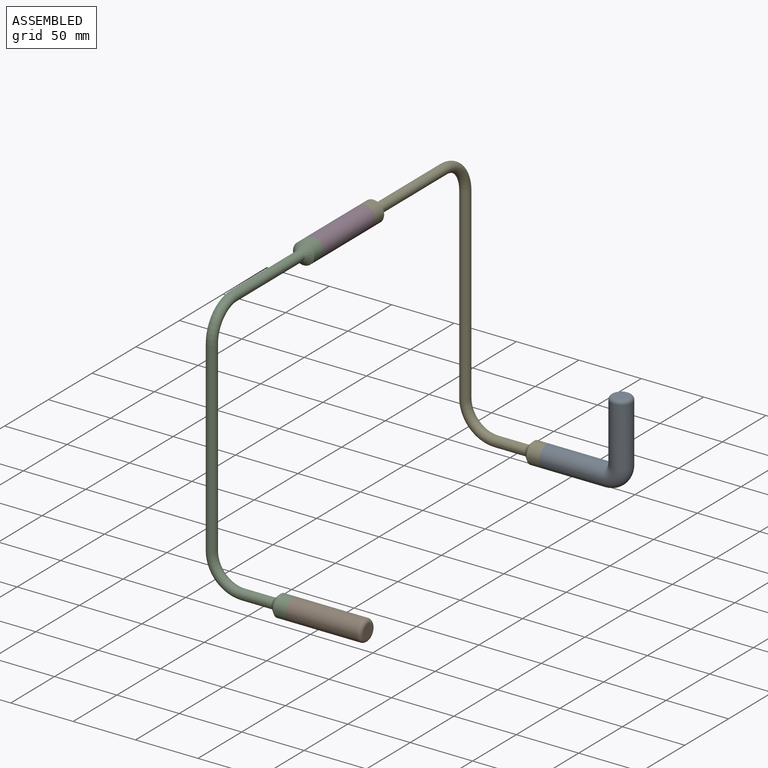
[diagram: assembled view]
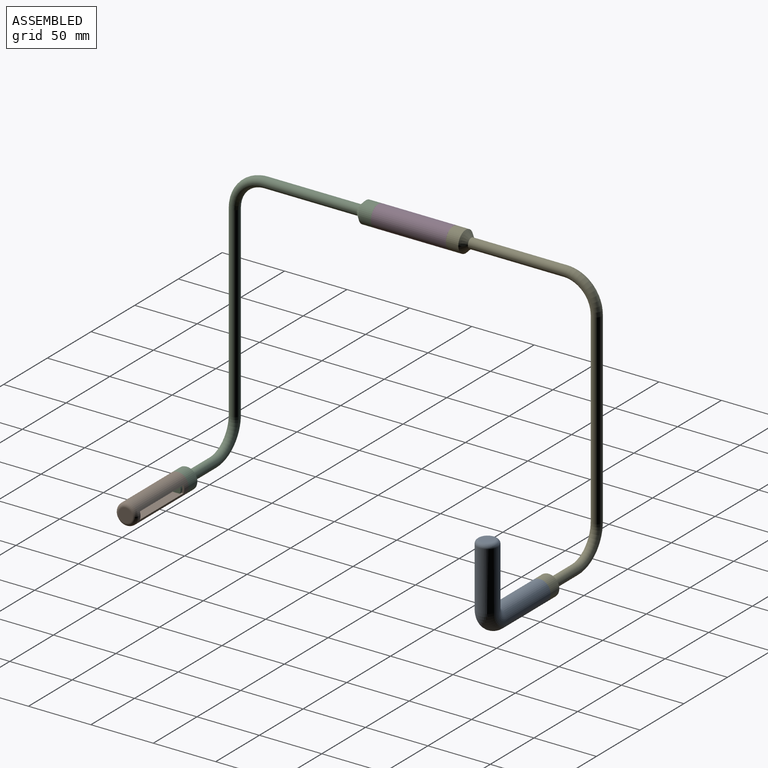
[diagram: assembled view, second angle]
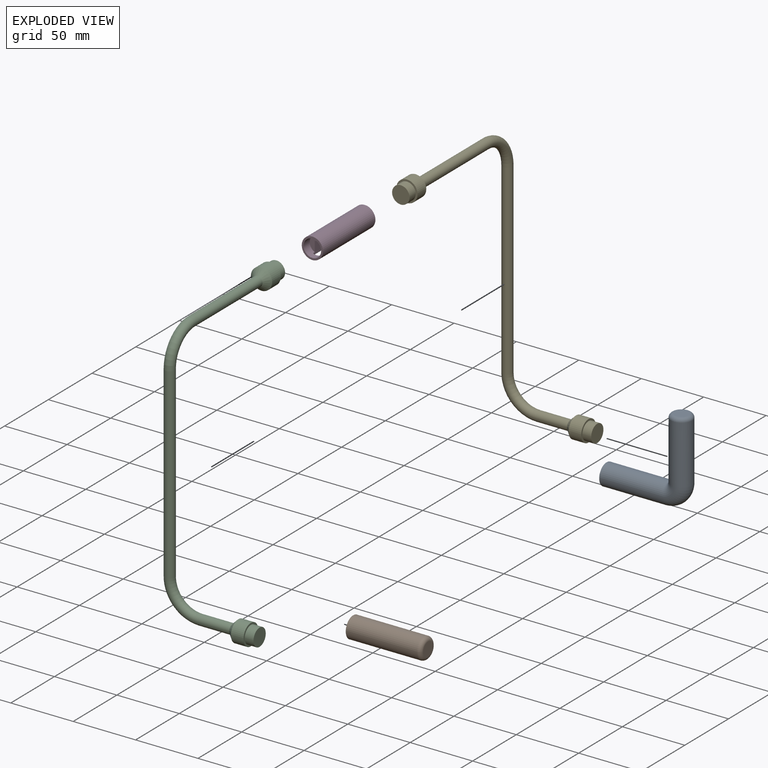
[diagram: exploded view]
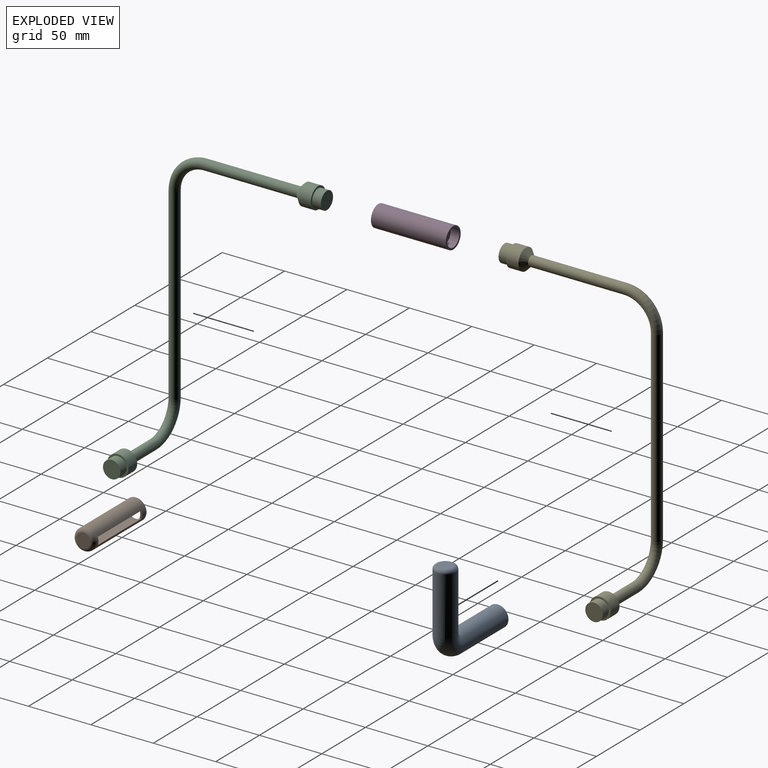
[diagram: exploded view, second angle]
ASSEMBLY  parts=5 mates=3
PART A: 8 faces, bbox 18.4x70x70 mm
  f0: plane 17x17mm, normal (0,1,0), area 73mm2, adj f2,f5
  f1: plane 11x11mm, normal (0,0,1), area 95mm2, adj f7
  f2: cylinder r=8.5mm len=50mm, axis (0,-1,0), area 2670.4mm2, adj f0,f3
  f3: torus R=10mm, axis (-1,0,0), area 838.9mm2, adj f2,f4
  f4: cylinder r=8.5mm len=47mm, axis (0,0,1), area 2510.1mm2, adj f3,f7
  f5: cylinder r=7mm len=14mm, axis (0,1,0), area 307.9mm2, adj f0,f6
  f6: plane 14x14mm, normal (0,1,0), area 153.9mm2, adj f5
  f7: torus R=5.5mm, axis (0,0,1), area 219.4mm2, adj f1,f4
PART B: 11 faces, bbox 60x18.4x18.4 mm
  f0: plane 48x6mm, normal (0,-1,0), area 288mm2, adj f5,f6,f7,f9
  f1: plane 17x17mm, normal (1,0,0), area 73mm2, adj f3,f8
  f2: plane 6x2.18mm, normal (-1,0,0), area 9.2mm2, adj f3,f6,f7,f8
  f3: cylinder r=8.5mm len=57mm, axis (-1,0,0), area 2737.6mm2, adj f1,f2,f5,f6,f7,f10
  f4: plane 11x11mm, normal (-1,0,0), area 95mm2, adj f10
  f5: plane 10.5x6mm, normal (1,0,0), area 61.9mm2, adj f0,f3,f6,f7
  f6: plane 50x9.95mm, normal (0,0,-1), area 481mm2, adj f0,f2,f3,f5,f8,f9
  f7: plane 50x9.95mm, normal (0,0,1), area 481mm2, adj f0,f2,f3,f5,f8,f9
  f8: cylinder r=7mm len=14mm, axis (1,0,0), area 295.5mm2, adj f1,f2,f6,f7,f9
  f9: plane 14x13.32mm, normal (1,0,0), area 101.3mm2, adj f0,f6,f7,f8
  f10: torus R=5.5mm, axis (1,0,0), area 219.4mm2, adj f3,f4
PART C: 15 faces, bbox 130.5x80.5x217 mm
  f0: cylinder r=4mm len=25.5mm, axis (0,1,0), area 640.9mm2, adj f1,f12
  f1: torus R=25mm, axis (1,0,0), area 987mm2, adj f0,f2
  f2: cylinder r=4mm len=150mm, axis (0,0,1), area 3769.9mm2, adj f1,f3
  f3: torus R=25mm, axis (0,1,0), area 987mm2, adj f2,f4
  f4: cylinder r=4mm len=75.5mm, axis (1,0,0), area 1897.5mm2, adj f3,f7
  f5: cylinder r=8.5mm len=17mm, axis (-1,0,0), area 534.1mm2, adj f6,f7
  f6: plane 17x17mm, normal (1,0,0), area 73mm2, adj f5,f8
  f7: cone r=8.5mm half-angle=45deg, axis (1,0,0), area 249.9mm2, adj f4,f5
  f8: cylinder r=7mm len=14mm, axis (-1,0,0), area 307.9mm2, adj f6,f9
  f9: plane 14x14mm, normal (1,0,0), area 153.9mm2, adj f8
  f10: cylinder r=8.5mm len=17mm, axis (0,1,0), area 534.1mm2, adj f11,f12
  f11: plane 17x17mm, normal (0,-1,0), area 73mm2, adj f10,f13
  f12: cone r=8.5mm half-angle=45deg, axis (0,-1,0), area 249.9mm2, adj f0,f10
  f13: cylinder r=7mm len=14mm, axis (0,1,0), area 307.9mm2, adj f11,f14
  f14: plane 14x14mm, normal (0,-1,0), area 153.9mm2, adj f13
PART D: 12 faces, bbox 60x17x17 mm
  f0: plane 46x6mm, normal (0,-1,0), area 276mm2, adj f6,f7,f9,f11
  f1: plane 17x17mm, normal (1,0,0), area 73mm2, adj f5,f8
  f2: plane 17x17mm, normal (-1,0,0), area 73mm2, adj f5,f10
  f3: plane 6x2.18mm, normal (1,0,0), area 9.2mm2, adj f5,f6,f7,f10
  f4: plane 6x2.18mm, normal (-1,0,0), area 9.2mm2, adj f5,f6,f7,f8
  f5: cylinder r=8.5mm len=60mm, axis (-1,0,0), area 2897.8mm2, adj f1,f2,f3,f4,f6,f7
  f6: plane 50x9.95mm, normal (0,0,-1), area 464.4mm2, adj f0,f3,f4,f5,f8,f9,f10,f11
  f7: plane 50x9.95mm, normal (0,0,1), area 464.4mm2, adj f0,f3,f4,f5,f8,f9,f10,f11
  f8: cylinder r=7mm len=14mm, axis (1,0,0), area 295.5mm2, adj f1,f4,f6,f7,f9
  f9: plane 14x13.32mm, normal (1,0,0), area 101.3mm2, adj f0,f6,f7,f8
  f10: cylinder r=7mm len=14mm, axis (-1,0,0), area 295.5mm2, adj f2,f3,f6,f7,f11
  f11: plane 14x13.32mm, normal (-1,0,0), area 101.3mm2, adj f0,f6,f7,f10
PART E: 15 faces, bbox 80.5x130.5x217 mm
  f0: cylinder r=4mm len=25.5mm, axis (-1,0,0), area 640.9mm2, adj f1,f12
  f1: torus R=25mm, axis (0,1,0), area 987mm2, adj f0,f2
  f2: cylinder r=4mm len=150mm, axis (0,0,1), area 3769.9mm2, adj f1,f3
  f3: torus R=25mm, axis (1,0,0), area 987mm2, adj f2,f4
  f4: cylinder r=4mm len=75.5mm, axis (0,-1,0), area 1897.5mm2, adj f3,f7
  f5: cylinder r=8.5mm len=17mm, axis (0,1,0), area 534.1mm2, adj f6,f7
  f6: plane 17x17mm, normal (0,-1,0), area 73mm2, adj f5,f8
  f7: cone r=8.5mm half-angle=45deg, axis (0,-1,0), area 249.9mm2, adj f4,f5
  f8: cylinder r=7mm len=14mm, axis (0,1,0), area 307.9mm2, adj f6,f9
  f9: plane 14x14mm, normal (0,-1,0), area 153.9mm2, adj f8
  f10: cylinder r=8.5mm len=17mm, axis (-1,0,0), area 534.1mm2, adj f11,f12
  f11: plane 17x17mm, normal (1,0,0), area 73mm2, adj f10,f13
  f12: cone r=8.5mm half-angle=45deg, axis (1,0,0), area 249.9mm2, adj f0,f10
  f13: cylinder r=7mm len=14mm, axis (-1,0,0), area 307.9mm2, adj f11,f14
  f14: plane 14x14mm, normal (1,0,0), area 153.9mm2, adj f13
PLACE A rot(axis=(0,0,1),90deg) t=(86.08,90.03,-118.38)mm
PLACE B rot(axis=(0,0,1),180deg) t=(146.08,-199.97,-118.38)mm
PLACE C rot(axis=(0,0,1),90deg) t=(21.08,-199.97,-18.38)mm
PLACE D rot(axis=(0.58,0.58,0.58),120deg) t=(21.08,-84.97,81.62)mm
PLACE E t=(21.08,90.03,-18.38)mm
MATE fastened C.f5 <-> D.f8  axis (0,1,0) through (21.08,-77.97,81.62)mm
MATE fastened A.f5 <-> E.f10  axis (-1,0,0) through (93.08,90.03,-118.38)mm
MATE fastened B.f8 <-> C.f0  axis (-1,0,0) through (93.08,-199.97,-118.38)mm
